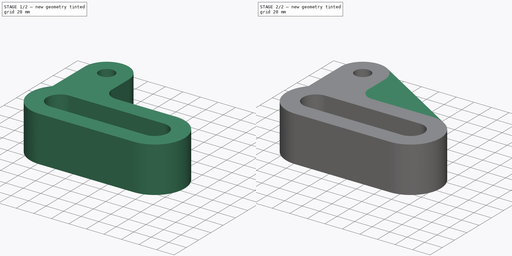
[diagram: build sequence overview — one tinted view per stage of 2, left to right]
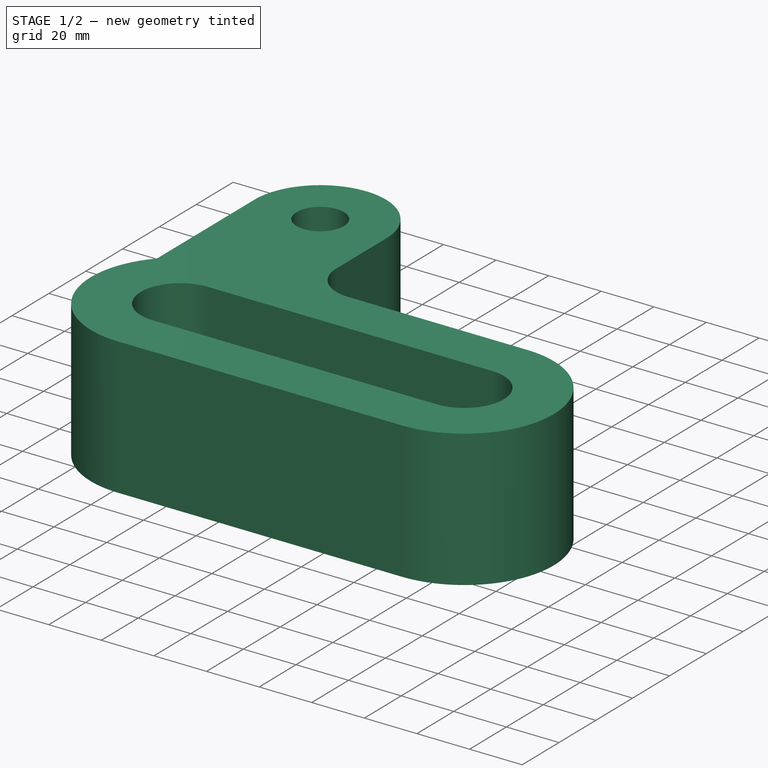
[diagram: stage 1 of 2 — iso view after this stage's code; geometry added in this stage tinted green]
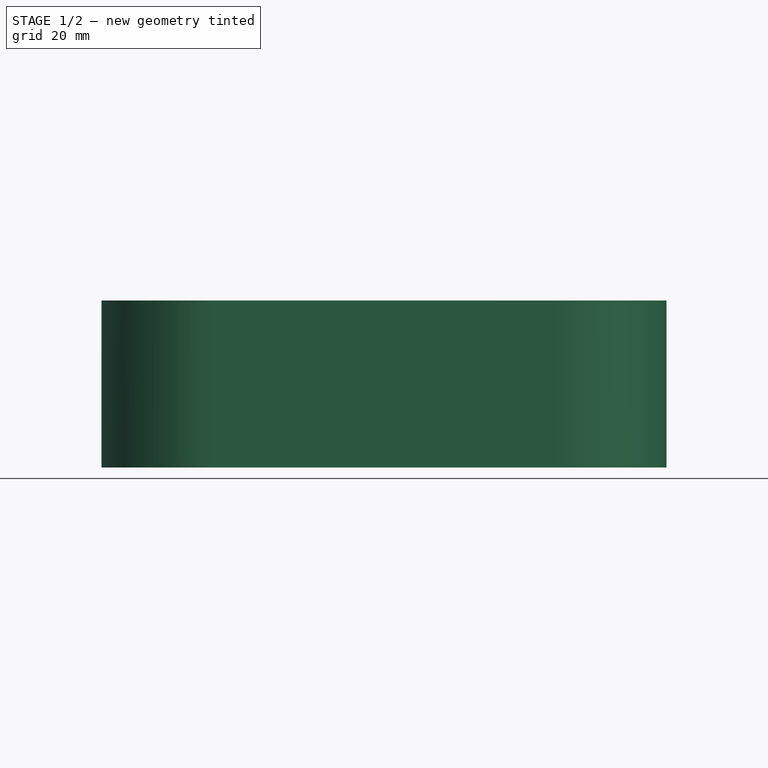
[diagram: stage 1 of 2 — front view after this stage's code; geometry added in this stage tinted green]
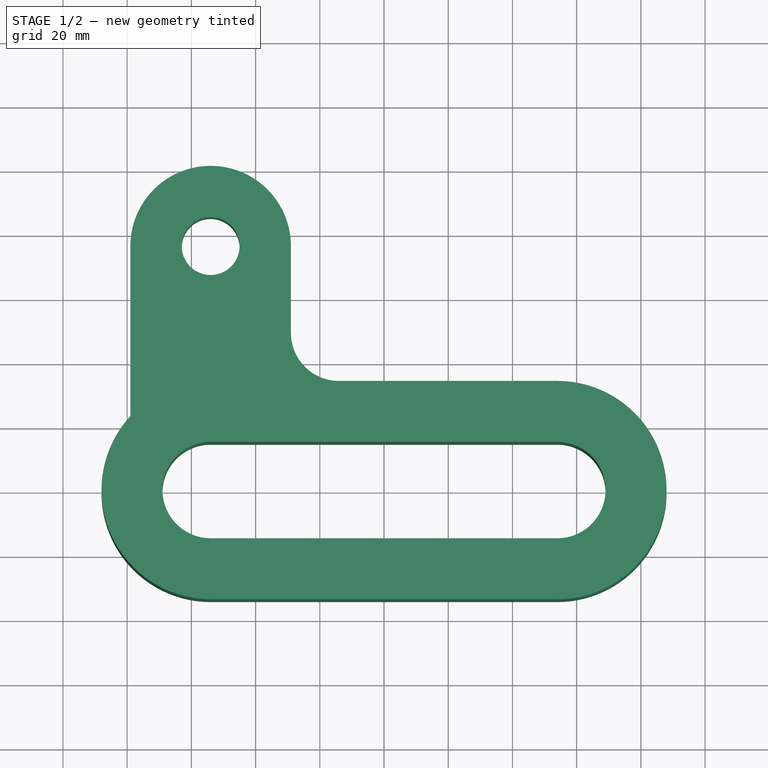
[diagram: stage 1 of 2 — top view after this stage's code; geometry added in this stage tinted green]
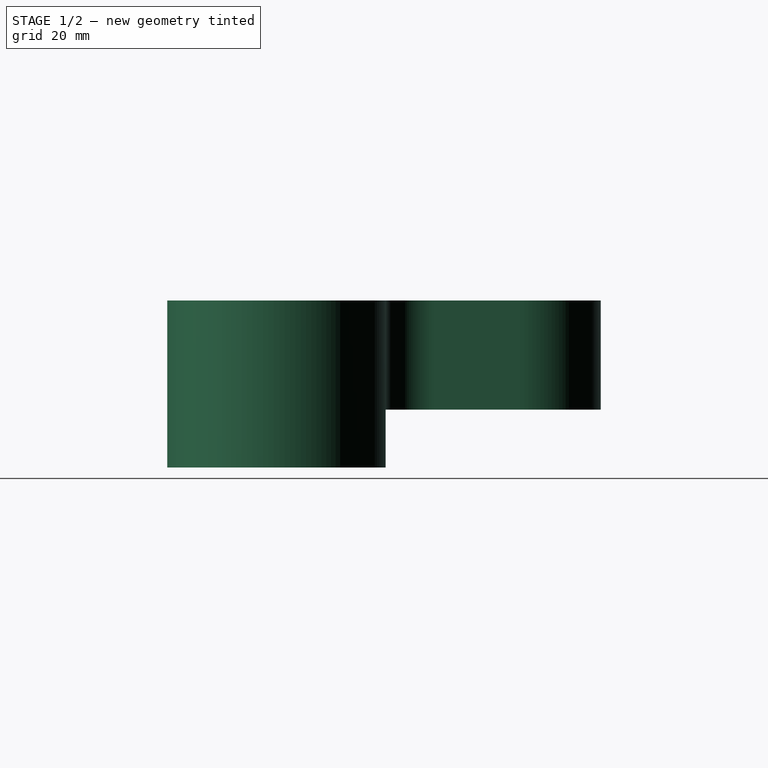
[diagram: stage 1 of 2 — right view after this stage's code; geometry added in this stage tinted green]
FCSTD DOCUMENT  (FreeCAD 1.0RUnknown)
Label: exercise4
License: All rights reserved
LicenseURL: http://en.wikipedia.org/wiki/All_rights_reserved
objects: Sketcher::SketchObject×3, PartDesign::Pad×3, PartDesign::Body×1
note: 16 computed .brp shape members not serialized (recipe doc carries the construction recipe); baked Part::Feature solids carry a one-line shape summary decoded from their .brp

FEATURE [Sketcher::SketchObject] Sketch
  ArcFitTolerance = 1e-06
  AttachmentSupport = -> [XY_Plane]
  FullyConstrained = true
  MakeInternals = false
  MapMode = 5
  sketch-geometry (8):
    g0: LineSegment StartX=-54 StartY=34 StartZ=0 EndX=54 EndY=34 EndZ=0
    g1: ArcOfCircle CenterX=54 CenterY=3e-15 CenterZ=0 NormalX=0 NormalY=0 NormalZ=1 AngleXU=0 Radius=34 StartAngle=4.71239 EndAngle=7.85398
    g2: LineSegment StartX=54 StartY=-34 StartZ=0 EndX=-54 EndY=-34 EndZ=0
    g3: ArcOfCircle CenterX=-54 CenterY=1e-15 CenterZ=0 NormalX=0 NormalY=0 NormalZ=1 AngleXU=0 Radius=34 StartAngle=1.5708 EndAngle=4.71239
    g4: LineSegment StartX=-54 StartY=15 StartZ=0 EndX=54 EndY=15 EndZ=0
    g5: ArcOfCircle CenterX=54 CenterY=7e-16 CenterZ=0 NormalX=0 NormalY=0 NormalZ=1 AngleXU=0 Radius=15 StartAngle=4.71239 EndAngle=7.85398
    g6: LineSegment StartX=54 StartY=-15 StartZ=0 EndX=-54 EndY=-15 EndZ=0
    g7: ArcOfCircle CenterX=-54 CenterY=-3e-16 CenterZ=0 NormalX=0 NormalY=0 NormalZ=1 AngleXU=0 Radius=15 StartAngle=1.5708 EndAngle=4.71239
  constraints (18):
    c: Tangent(g0,g1) = 1.5708
    c: Tangent(g1,g2) = 1.5708
    c: Tangent(g2,g3) = 1.5708
    c: Coincident(g3,g0)
    c: Tangent(g4,g5) = 1.5708
    c: Tangent(g5,g6) = 1.5708
    c: Tangent(g6,g7) = 1.5708
    c: Coincident(g7,g4)
    c: Equal(g7,g5)
    c: Equal(g1,g3)
    c: Radius(g5) = 15
    c: Radius(g1) = 34
    c: Symmetric(g4,g5,g-1)
    c: Symmetric(g1,g0,g-1)
    c: Symmetric(g4,g4,g-2)
    c: Symmetric(g0,g0,g-2)
    c: DistanceX(g4,g4) = 108
    c: Vertical(g0,g4)
FEATURE [PartDesign::Pad] Pad
  Direction = (0,0,1)
  Length = 52
  Length2 = 10
  Profile = -> Sketch
  ReferenceAxis = -> Sketch [N_Axis]
  Suppressed = false
  Type = 0
FEATURE [Sketcher::SketchObject] Sketch001
  ArcFitTolerance = 1e-06
  AttachmentSupport = -> [Pad]
  ExternalGeometry = -> [Sketch]
  FullyConstrained = true
  MakeInternals = false
  MapMode = 5
  Placement = pos=(0,0,52) rot=(0,0,1;0rad)
  sketch-geometry (7):
    g0: LineSegment StartX=-79 StartY=23.0435 StartZ=0 EndX=-79 EndY=76 EndZ=0
    g1: ArcOfCircle CenterX=-54 CenterY=76 CenterZ=0 NormalX=0 NormalY=0 NormalZ=1 AngleXU=0 Radius=25 StartAngle=0 EndAngle=3.14159
    g2: LineSegment StartX=-29 StartY=76 StartZ=0 EndX=-29 EndY=49 EndZ=0
    g3: ArcOfCircle CenterX=-14 CenterY=49 CenterZ=0 NormalX=0 NormalY=0 NormalZ=1 AngleXU=0 Radius=15 StartAngle=3.14159 EndAngle=4.71239
    g4: LineSegment StartX=-14 StartY=34 StartZ=0 EndX=-14 EndY=23.0435 EndZ=0
    g5: LineSegment StartX=-14 StartY=23.0435 StartZ=0 EndX=-79 EndY=23.0435 EndZ=0
    g6: Circle CenterX=-54 CenterY=76 CenterZ=0 NormalX=0 NormalY=0 NormalZ=1 AngleXU=0 Radius=9
  constraints (18):
    c: Vertical(g0)
    c: Tangent(g0,g1) = 1.5708
    c: Tangent(g1,g2) = 1.5708
    c: Tangent(g2,g3) = -1.5708
    c: Vertical(g4)
    c: Coincident(g4,g5)
    c: Coincident(g5,g0)
    c: Horizontal(g5)
    c: Vertical(g1,g-3)
    c: Radius(g3) = 15
    c: Vertical(g2)
    c: DistanceY(g-1,g1) = 76
    c: Radius(g1) = 25
    c: Coincident(g4,g3)
    c: Tangent(g3,g-4) = -1.5708
    c: PointOnObject(g0,g-5)
    c: Coincident(g6,g1)
    c: Diameter(g6) = 18
FEATURE [PartDesign::Pad] Pad001
  BaseFeature = -> Pad
  Direction = (0,0,1)
  Length = 34
  Length2 = 10
  Profile = -> Sketch001
  ReferenceAxis = -> Sketch001 [N_Axis]
  Reversed = true
  Suppressed = false
  Type = 0
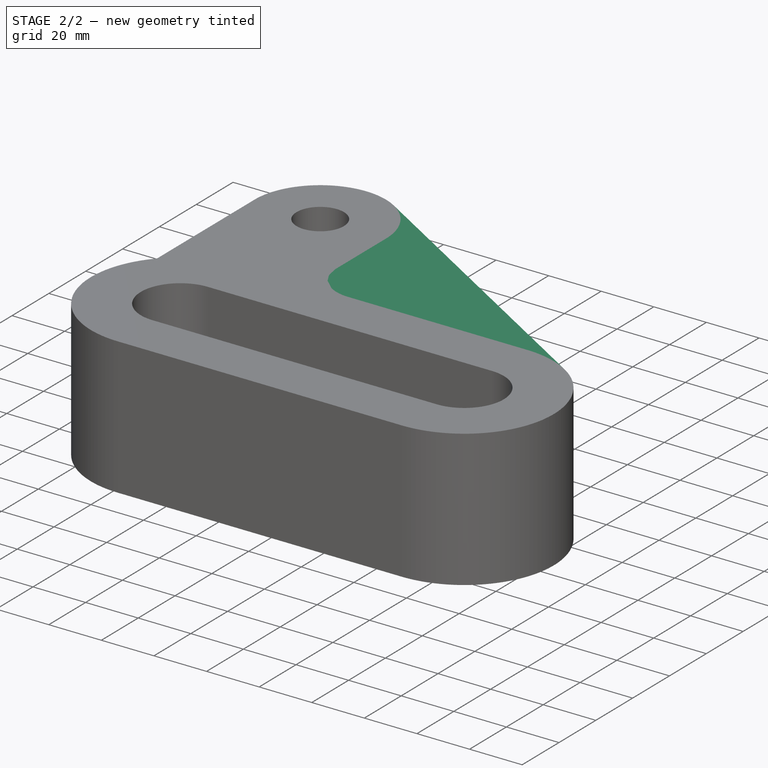
[diagram: stage 2 of 2 — iso view after this stage's code; geometry added in this stage tinted green]
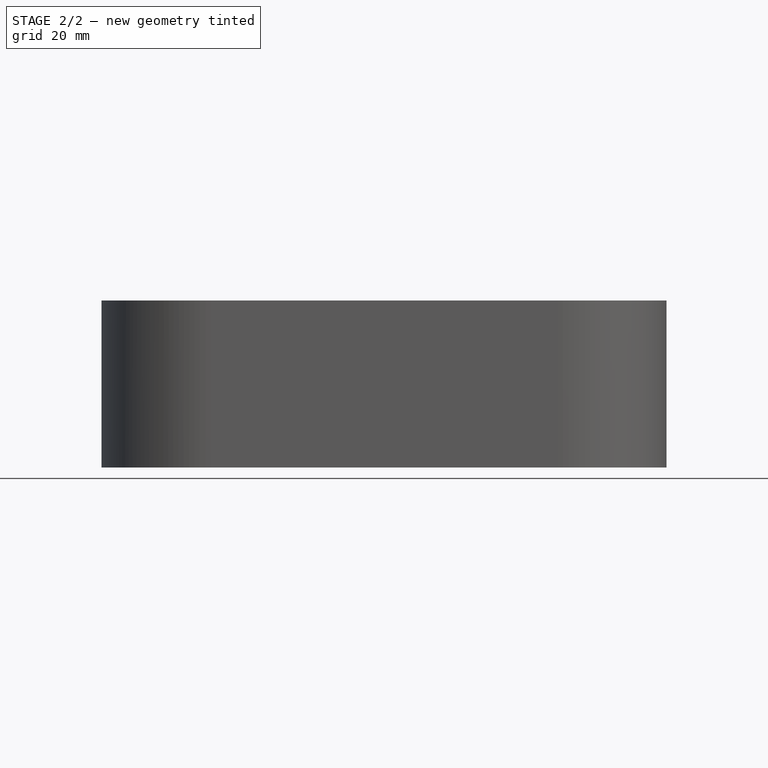
[diagram: stage 2 of 2 — front view after this stage's code; geometry added in this stage tinted green]
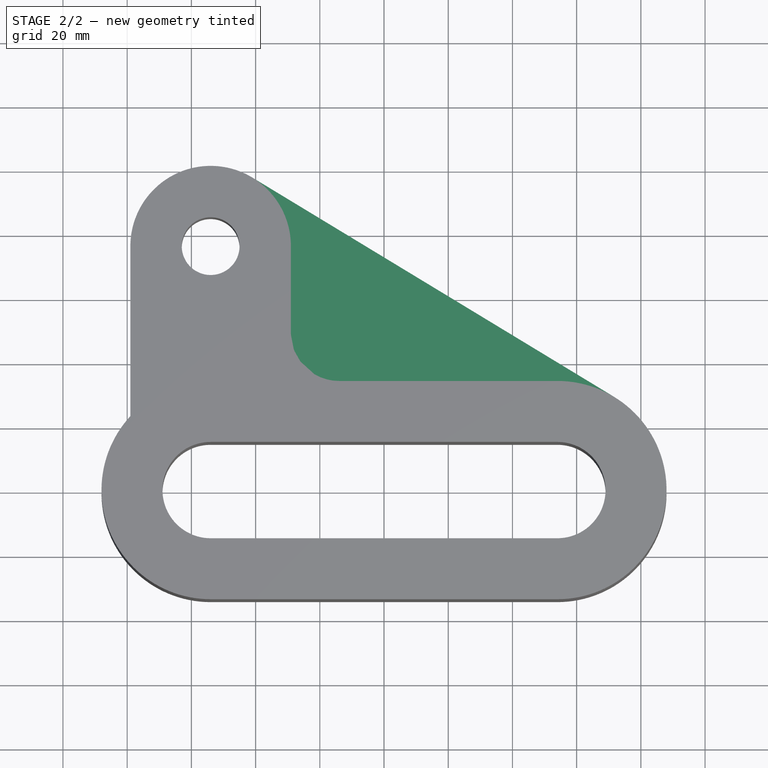
[diagram: stage 2 of 2 — top view after this stage's code; geometry added in this stage tinted green]
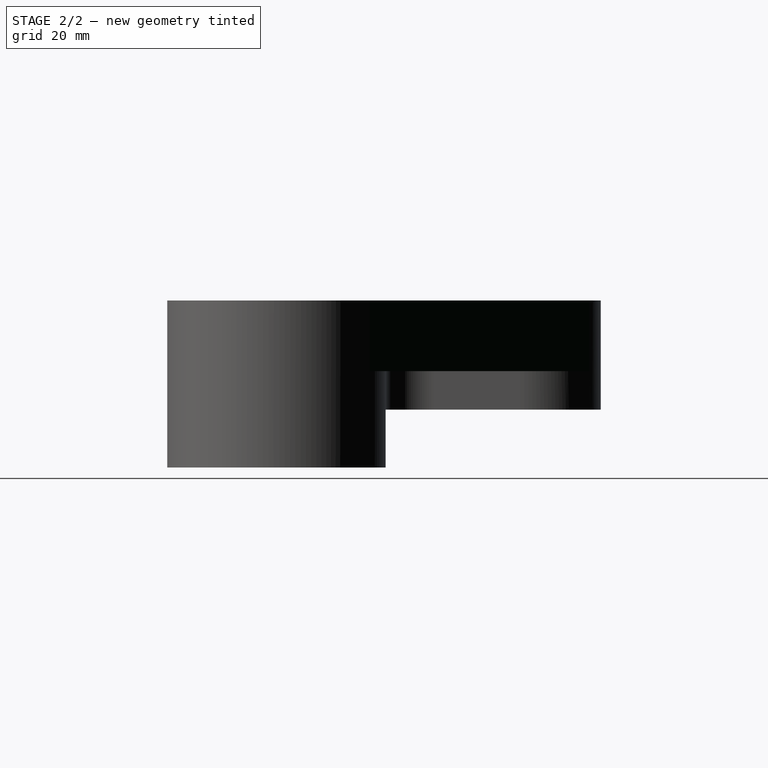
[diagram: stage 2 of 2 — right view after this stage's code; geometry added in this stage tinted green]
FEATURE [Sketcher::SketchObject] Sketch002
  ArcFitTolerance = 1e-06
  AttachmentSupport = -> [Pad001]
  ExternalGeometry = -> [Pad001]
  FullyConstrained = true
  MakeInternals = false
  MapMode = 5
  Placement = pos=(0,0,52) rot=(0,0,1;0rad)
  sketch-geometry (3):
    g0: LineSegment StartX=-41.0395 StartY=97.3781 StartZ=0 EndX=71.6263 EndY=29.0743 EndZ=0
    g1: LineSegment StartX=71.6263 StartY=29.0743 StartZ=0 EndX=-41.0395 EndY=29.0743 EndZ=0
    g2: LineSegment StartX=-41.0395 StartY=29.0743 StartZ=0 EndX=-41.0395 EndY=97.3781 EndZ=0
  constraints (7):
    c: Coincident(g0,g1)
    c: Horizontal(g1)
    c: Coincident(g1,g2)
    c: Coincident(g2,g0)
    c: Vertical(g2)
    c: Tangent(g0,g-4) = 1.5708
    c: Tangent(g0,g-3) = 1.5708
FEATURE [PartDesign::Pad] Pad002
  BaseFeature = -> Pad001
  Direction = (0,0,1)
  Length = 22
  Length2 = 10
  Profile = -> Sketch002
  ReferenceAxis = -> Sketch002 [N_Axis]
  Reversed = true
  Suppressed = false
  Type = 0
FEATURE [PartDesign::Body] Body
  AllowCompound = false
  Group = -> [Sketch,Pad,Sketch001,Pad001,Sketch002,Pad002]
  Origin = -> Origin
  Tip = -> Pad002
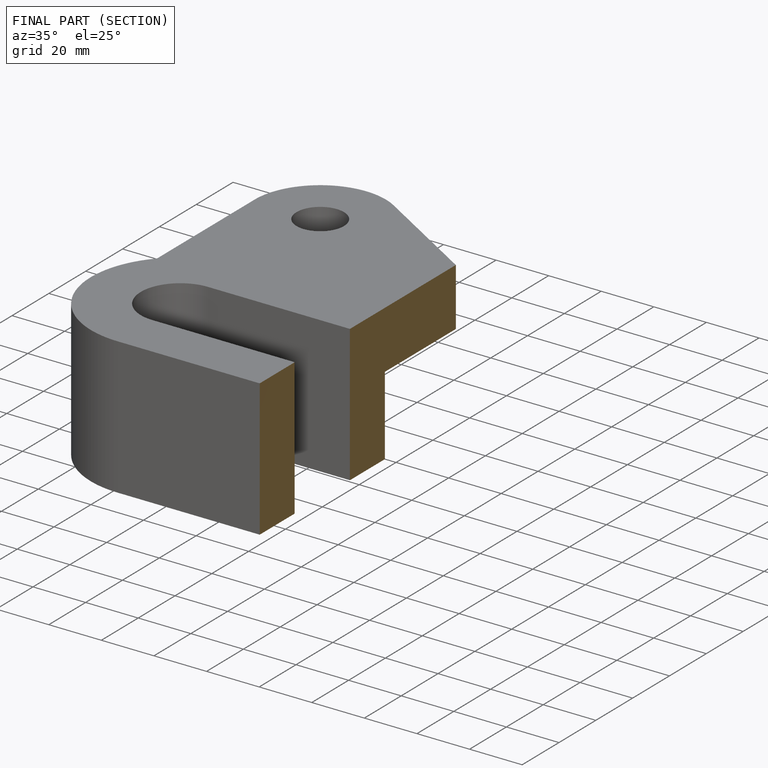
[diagram: finished part — half-section view (interior)]
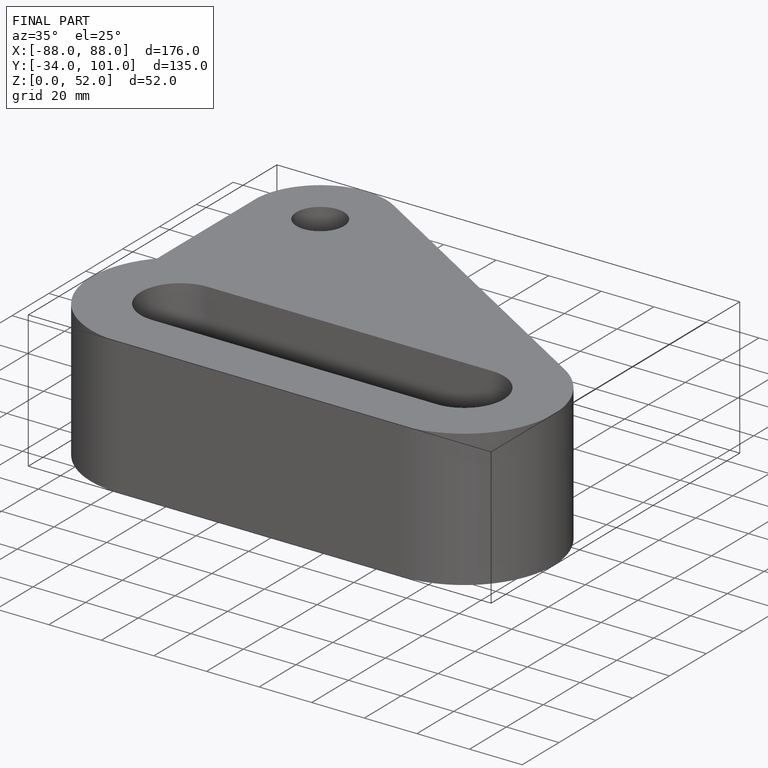
[diagram: finished part — iso view with bounding-box wireframe]
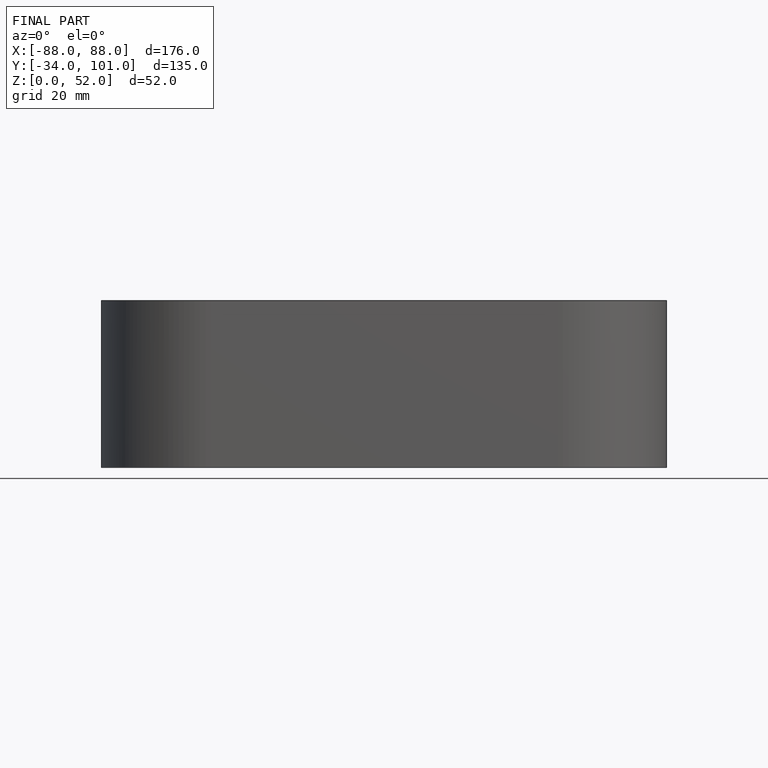
[diagram: finished part — front view with bounding-box wireframe]
